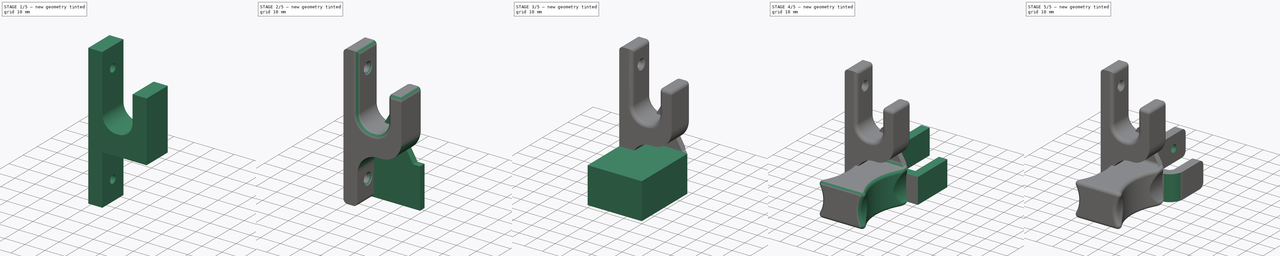
[diagram: build sequence overview — one tinted view per stage of 5, left to right]
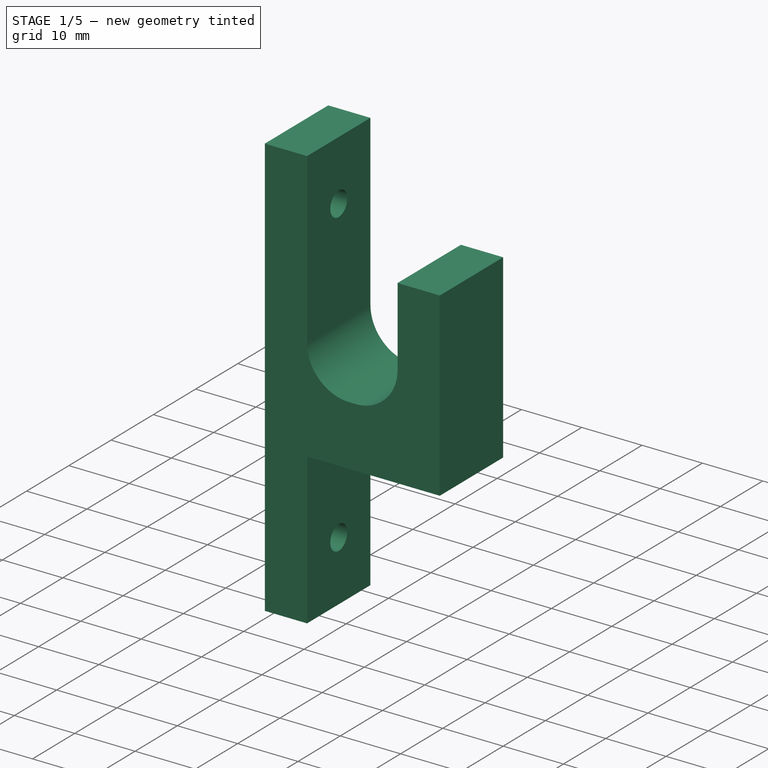
[diagram: stage 1 of 5 — iso view after this stage's code; geometry added in this stage tinted green]
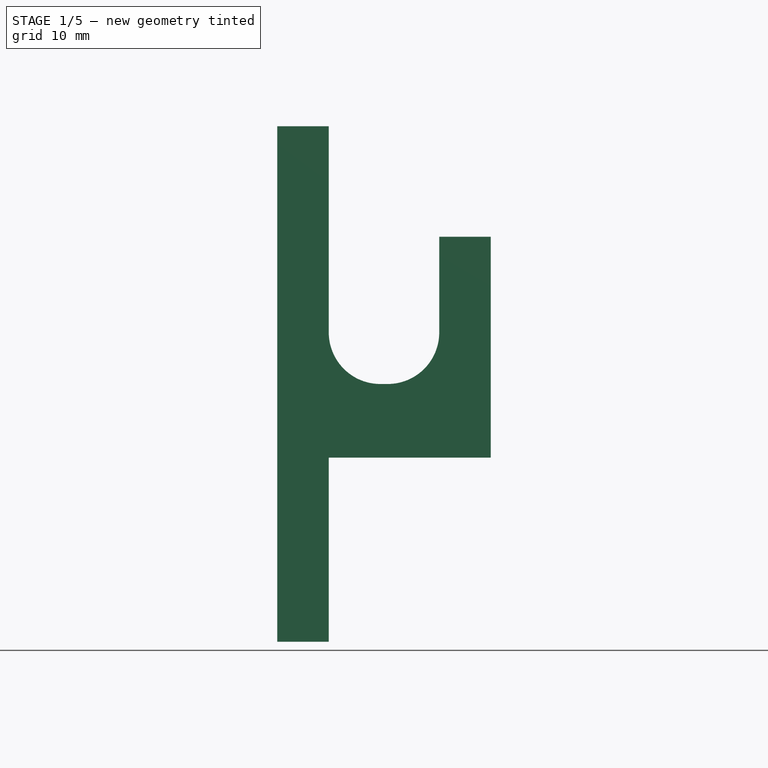
[diagram: stage 1 of 5 — front view after this stage's code; geometry added in this stage tinted green]
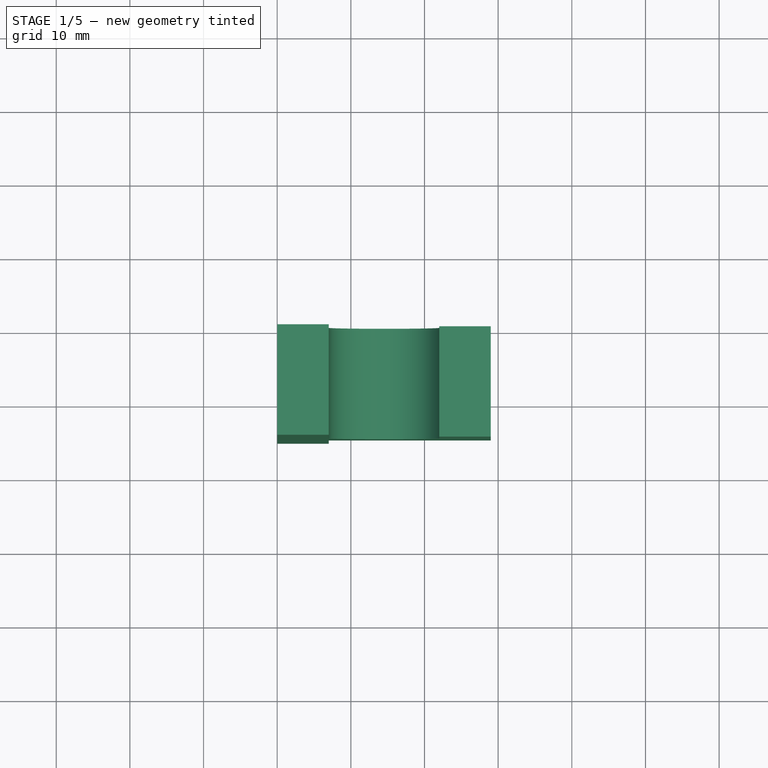
[diagram: stage 1 of 5 — top view after this stage's code; geometry added in this stage tinted green]
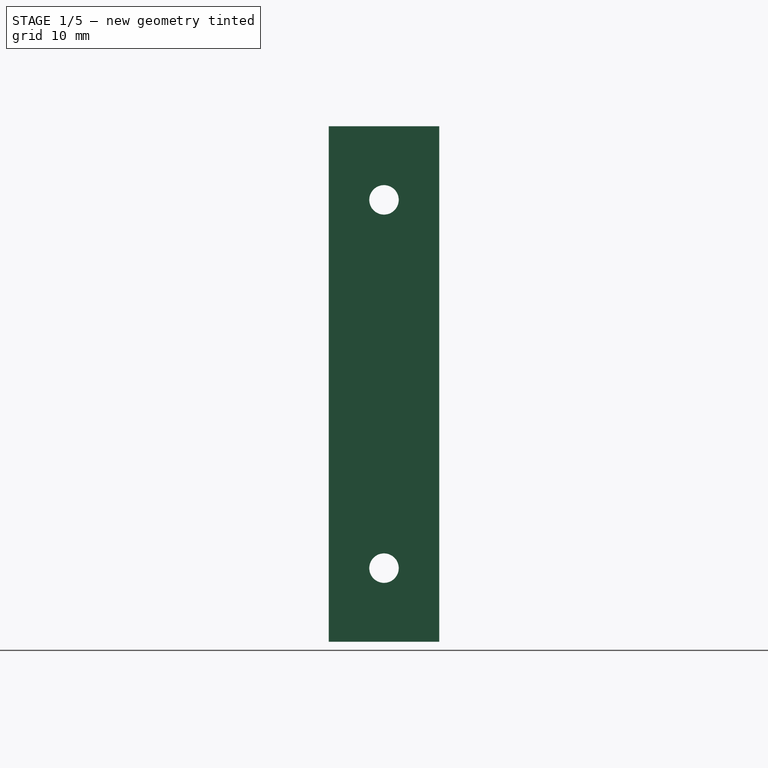
[diagram: stage 1 of 5 — right view after this stage's code; geometry added in this stage tinted green]
FCSTD DOCUMENT  (FreeCAD 1.0R39109 (Git))
Label: washBasketHook
License: All rights reserved
LicenseURL: https://en.wikipedia.org/wiki/All_rights_reserved
objects: Sketcher::SketchObject×6, PartDesign::Fillet×6, PartDesign::Pad×4, PartDesign::Body×3, PartDesign::Pocket×3, PartDesign::SubtractiveCylinder×2, PartDesign::Chamfer×2, Spreadsheet::Sheet×1
note: 66 computed .brp shape members not serialized (recipe doc carries the construction recipe); baked Part::Feature solids carry a one-line shape summary decoded from their .brp

FEATURE [PartDesign::Body] Body001  label="standoff"
  AllowCompound = false
  Group = -> [Sketch001,Pad001,Pad002,Chamfer,Cylinder001,Sketch003,Pocket,Sketch004,Pocket001,Fillet002]
  Origin = -> Origin001
  Tip = -> Fillet002
FEATURE [Sketcher::SketchObject] Sketch005
  ArcFitTolerance = 1e-06
  AttachmentSupport = -> [XZ_Plane002]
  FullyConstrained = true
  MakeInternals = false
  MapMode = 5
  Placement = pos=(0,0,0) rot=(1,0,0;1.5708rad)
  sketch-geometry (10):
    g0: LineSegment StartX=0 StartY=0 StartZ=0 EndX=0 EndY=70 EndZ=0
    g1: LineSegment StartX=0 StartY=70 StartZ=0 EndX=7 EndY=70 EndZ=0
    g2: LineSegment StartX=7 StartY=70 StartZ=0 EndX=7 EndY=35 EndZ=0
    g3: LineSegment StartX=22 StartY=35 StartZ=0 EndX=22 EndY=55 EndZ=0
    g4: LineSegment StartX=22 StartY=55 StartZ=0 EndX=29 EndY=55 EndZ=0
    g5: LineSegment StartX=29 StartY=55 StartZ=0 EndX=29 EndY=25 EndZ=0
    g6: LineSegment StartX=29 StartY=25 StartZ=0 EndX=7 EndY=25 EndZ=0
    g7: LineSegment StartX=7 StartY=25 StartZ=0 EndX=7 EndY=0 EndZ=0
    g8: LineSegment StartX=7 StartY=0 StartZ=0 EndX=0 EndY=0 EndZ=0
    g9: LineSegment StartX=7 StartY=35 StartZ=0 EndX=22 EndY=35 EndZ=0
  constraints (29):
    c: Coincident(g0,g-1)
    c: PointOnObject(g0,g-2)
    c: Coincident(g1,g0)
    c: Horizontal(g1)
    c: Coincident(g2,g1)
    c: Vertical(g2)
    c: Vertical(g3)
    c: Coincident(g4,g3)
    c: Horizontal(g4)
    c: Coincident(g5,g4)
    c: Vertical(g5)
    c: Coincident(g6,g5)
    c: Horizontal(g6)
    c: Coincident(g7,g6)
    c: PointOnObject(g7,g-1)
    c: Vertical(g7)
    c: Coincident(g8,g7)
    c: Coincident(g8,g0)
    c: Coincident(g9,g2)
    c: Coincident(g9,g3)
    c: Horizontal(g9)
    c: DistanceX(g9,g9) = 15
    c: DistanceX(g4,g4) = 7
    c: DistanceX(g1,g1) = 7
    c: DistanceX(g8,g8) = 7
    c: DistanceY(g3,g3) = 20
    c: Distance(g2,g6) = 10
    c: DistanceY(g7,g7) = 25
    c: DistanceY(g2,g2) = 35
FEATURE [PartDesign::Pad] Pad003
  Direction = (0,-1,2e-16)
  Length = 15
  Length2 = 10
  Placement = pos=(0,0,0) rot=(1,0,0;1.5708rad)
  Profile = -> Sketch005
  ReferenceAxis = -> Sketch005 [N_Axis]
  Refine = true
  Suppressed = false
  Type = 0
FEATURE [Sketcher::SketchObject] Sketch006
  ArcFitTolerance = 1e-06
  AttachmentSupport = -> [Pad003]
  ExternalGeometry = -> [Pad003]
  FullyConstrained = true
  MakeInternals = false
  MapMode = 5
  Placement = pos=(0,0,0) rot=(0.707107,0,-0.707107;3.14159rad)
  sketch-geometry (3):
    g0: LineSegment [constr] StartX=-70 StartY=7.5 StartZ=0 EndX=0 EndY=7.5 EndZ=0
    g1: Circle CenterX=-60 CenterY=7.5 CenterZ=0 NormalX=0 NormalY=0 NormalZ=1 AngleXU=0 Radius=2
    g2: Circle CenterX=-10 CenterY=7.5 CenterZ=0 NormalX=0 NormalY=0 NormalZ=1 AngleXU=0 Radius=2
  constraints (9):
    c: Symmetric(g-3,g-3,g0)
    c: PointOnObject(g1,g0)
    c: PointOnObject(g2,g0)
    c: Equal(g1,g2)
    c: Diameter(g2) = 4
    c: DistanceX(g0,g1) = 10
    c: Distance(g2,g-3) = 10
    c: PointOnObject(g0,g-4)
    c: Horizontal(g0)
FEATURE [PartDesign::Pocket] Pocket002
  BaseFeature = -> Pad003
  Direction = (1,0,2e-16)
  Length = 5
  Length2 = 5
  Placement = pos=(0,0,0) rot=(1,0,0;1.5708rad)
  Profile = -> Sketch006
  ReferenceAxis = -> Sketch006 [N_Axis]
  Refine = true
  Suppressed = false
  Type = 1
FEATURE [PartDesign::Fillet] Fillet003
  Base = -> Pocket002 [Edge32,Edge33]
  BaseFeature = -> Pocket002
  Placement = pos=(0,0,0) rot=(1,0,0;1.5708rad)
  Radius = 7
  Refine = true
  SupportTransform = false
  Suppressed = false
  UseAllEdges = false
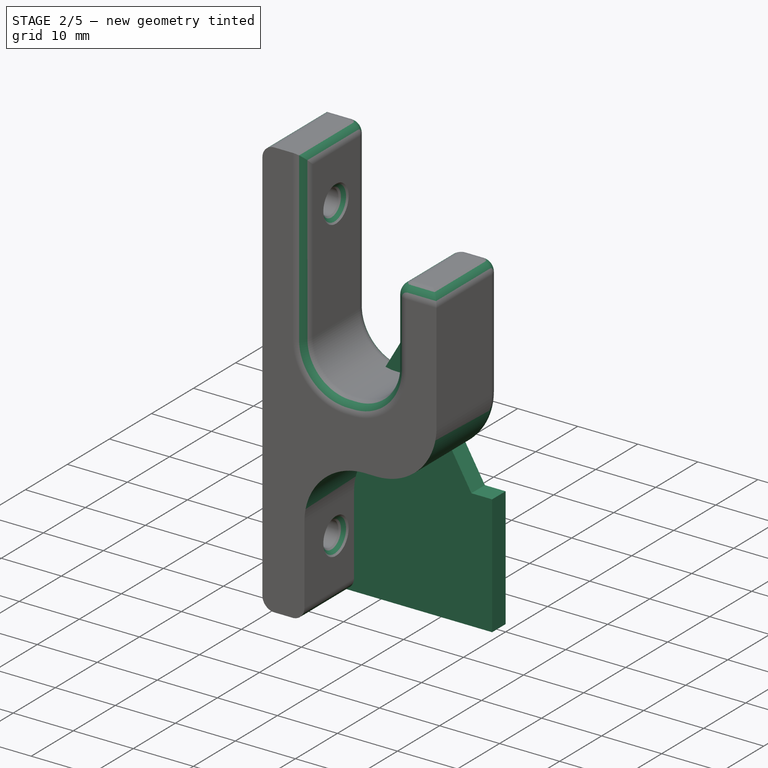
[diagram: stage 2 of 5 — iso view after this stage's code; geometry added in this stage tinted green]
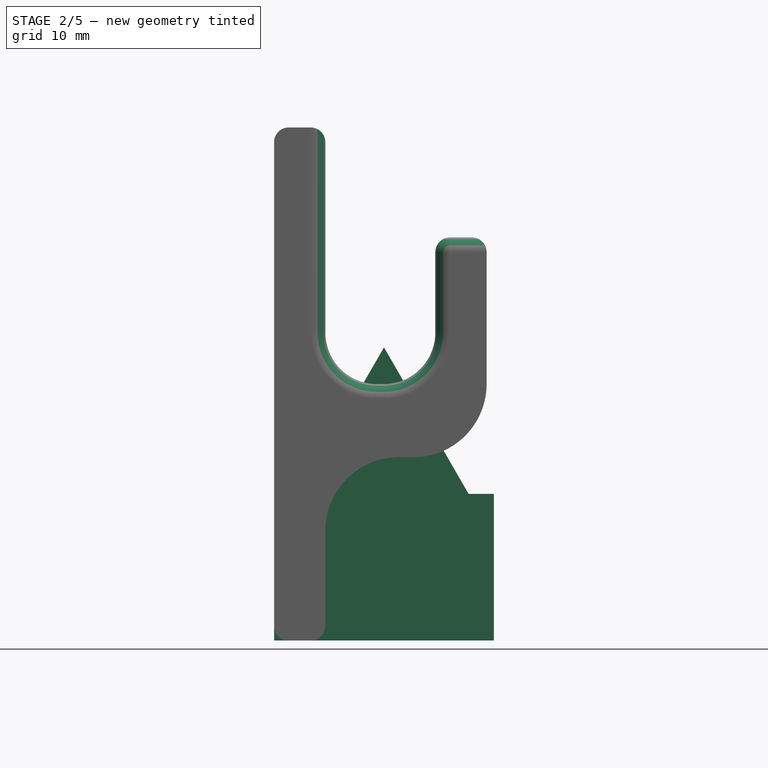
[diagram: stage 2 of 5 — front view after this stage's code; geometry added in this stage tinted green]
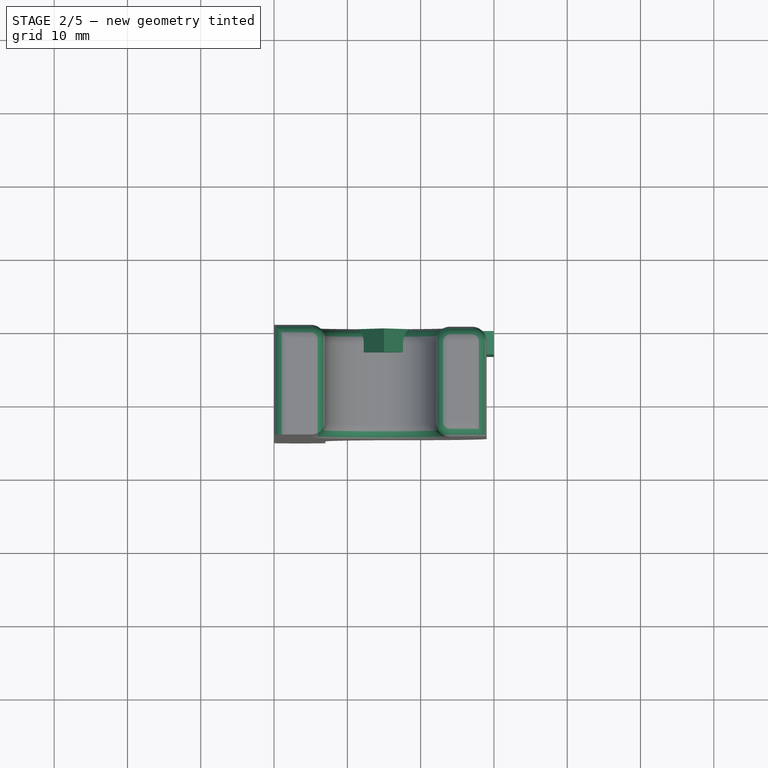
[diagram: stage 2 of 5 — top view after this stage's code; geometry added in this stage tinted green]
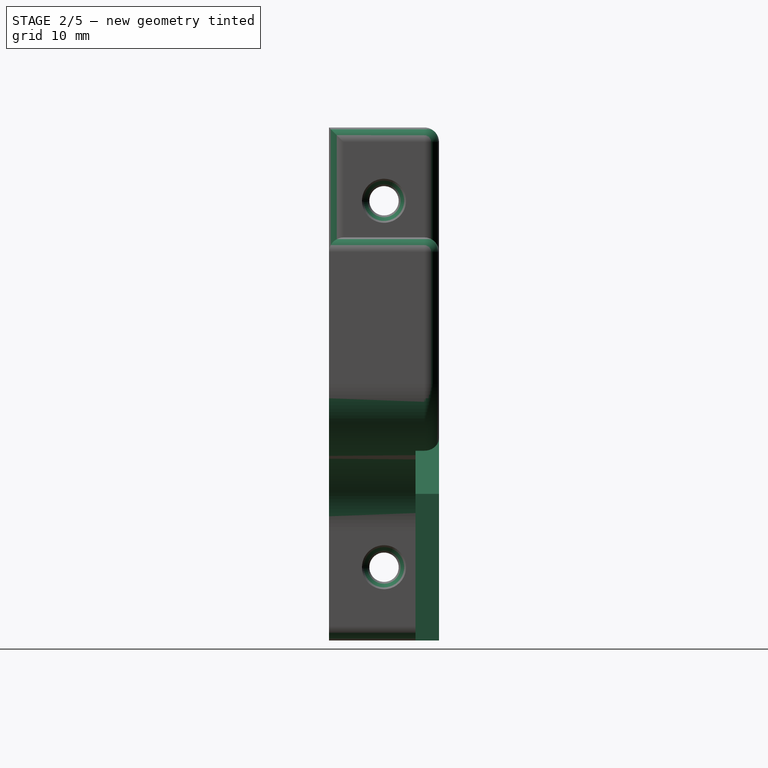
[diagram: stage 2 of 5 — right view after this stage's code; geometry added in this stage tinted green]
FEATURE [PartDesign::Body] Body  label="hook"
  AllowCompound = false
  Group = -> [Sketch,Pad,Fillet,Fillet001,Cylinder]
  Origin = -> Origin
  Tip = -> Cylinder
FEATURE [Sketcher::SketchObject] Sketch001
  ArcFitTolerance = 1e-06
  AttachmentSupport = -> [XZ_Plane001]
  FullyConstrained = true
  MakeInternals = false
  MapMode = 5
  Placement = pos=(0,0,0) rot=(1,0,0;1.5708rad)
  sketch-geometry (10):
    g0: LineSegment StartX=0 StartY=0 StartZ=0 EndX=30 EndY=0 EndZ=0
    g1: LineSegment StartX=30 StartY=0 StartZ=0 EndX=30 EndY=20 EndZ=0
    g2: LineSegment [constr] StartX=30 StartY=20 StartZ=0 EndX=0 EndY=20 EndZ=0
    g3: LineSegment StartX=0 StartY=20 StartZ=0 EndX=0 EndY=0 EndZ=0
    g4: LineSegment [constr] StartX=15 StartY=20 StartZ=0 EndX=15 EndY=61.81 EndZ=0
    g5: LineSegment StartX=3.45301 StartY=20 StartZ=0 EndX=15 EndY=40 EndZ=0
    g6: LineSegment StartX=15 StartY=40 StartZ=0 EndX=26.547 EndY=20 EndZ=0
    g7: LineSegment StartX=0 StartY=20 StartZ=0 EndX=3.45301 EndY=20 EndZ=0
    g8: LineSegment StartX=26.547 StartY=20 StartZ=0 EndX=30 EndY=20 EndZ=0
    g9: LineSegment StartX=3.45301 StartY=20 StartZ=0 EndX=26.547 EndY=20 EndZ=0
  constraints (27):
    c: Coincident(g0,g1)
    c: Coincident(g1,g2)
    c: Coincident(g2,g3)
    c: Coincident(g3,g0)
    c: Horizontal(g0)
    c: Horizontal(g2)
    c: Vertical(g1)
    c: Vertical(g3)
    c: Coincident(g0,g-1)
    c: Symmetric(g2,g2,g4)
    c: Vertical(g4)
    c: Angle(g5,g-1) = 2.09439
    c: PointOnObject(g5,g2)
    c: PointOnObject(g5,g4)
    c: Angle(g-1,g6) = -1.0472
    c: Coincident(g6,g5)
    c: PointOnObject(g6,g2)
    c: DistanceY(g6,g6) = 20
    c: DistanceX(g0,g0) = 30  'width'
    c: DistanceY(g1,g1) = 20
    c: Distance(g4,g4) = 41.81
    c: Coincident(g7,g2)
    c: Coincident(g7,g5)
    c: Coincident(g8,g6)
    c: Coincident(g8,g1)
    c: Coincident(g9,g5)
    c: Coincident(g9,g6)
FEATURE [PartDesign::Pad] Pad001
  Direction = (0,-1,2e-16)
  Length = 3.2
  Length2 = 10
  Placement = pos=(0,0,0) rot=(1,0,0;1.5708rad)
  Profile = -> Sketch001 [Edge7,Edge6,Edge5,Edge4,Edge3,Edge2,Edge1]
  ReferenceAxis = -> Sketch001 [N_Axis]
  Refine = true
  Suppressed = false
  Type = 0
FEATURE [PartDesign::Fillet] Fillet004
  Base = -> Fillet003 [Edge38,Edge33]
  BaseFeature = -> Fillet003
  Placement = pos=(0,0,0) rot=(1,0,0;1.5708rad)
  Radius = 10
  Refine = true
  SupportTransform = false
  Suppressed = false
  UseAllEdges = false
FEATURE [PartDesign::Fillet] Fillet005
  Base = -> Fillet004 [Edge31,Edge9,Edge38,Edge33,Edge7,Edge8,Edge3,Edge10,Edge39,Edge16,Edge43,Edge26,Edge21]
  BaseFeature = -> Fillet004
  Placement = pos=(0,0,0) rot=(1,0,0;1.5708rad)
  Radius = 2
  Refine = true
  SupportTransform = false
  Suppressed = false
  UseAllEdges = false
FEATURE [PartDesign::Chamfer] Chamfer001
  Angle = 45
  Base = -> Fillet005 [Edge70,Edge72]
  BaseFeature = -> Fillet005
  ChamferType = 0
  FlipDirection = false
  Placement = pos=(0,0,0) rot=(1,0,0;1.5708rad)
  Refine = true
  Size = 1
  Size2 = 1
  SupportTransform = false
  Suppressed = false
  UseAllEdges = false
FEATURE [PartDesign::Body] Body002  label="anotherHook"
  AllowCompound = false
  Group = -> [Sketch005,Pad003,Sketch006,Pocket002,Fillet003,Fillet004,Fillet005,Chamfer001]
  Origin = -> Origin002
  Tip = -> Chamfer001
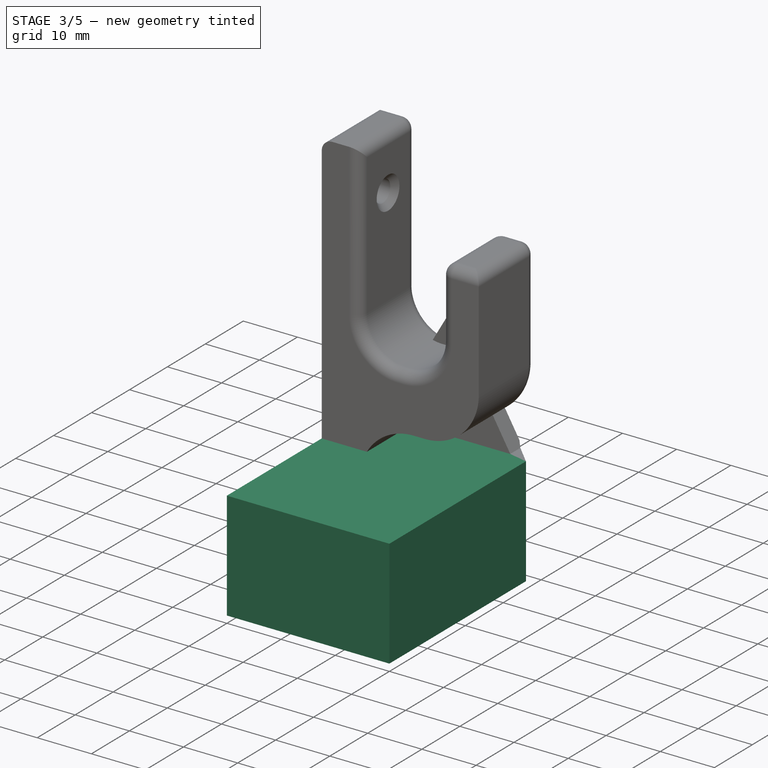
[diagram: stage 3 of 5 — iso view after this stage's code; geometry added in this stage tinted green]
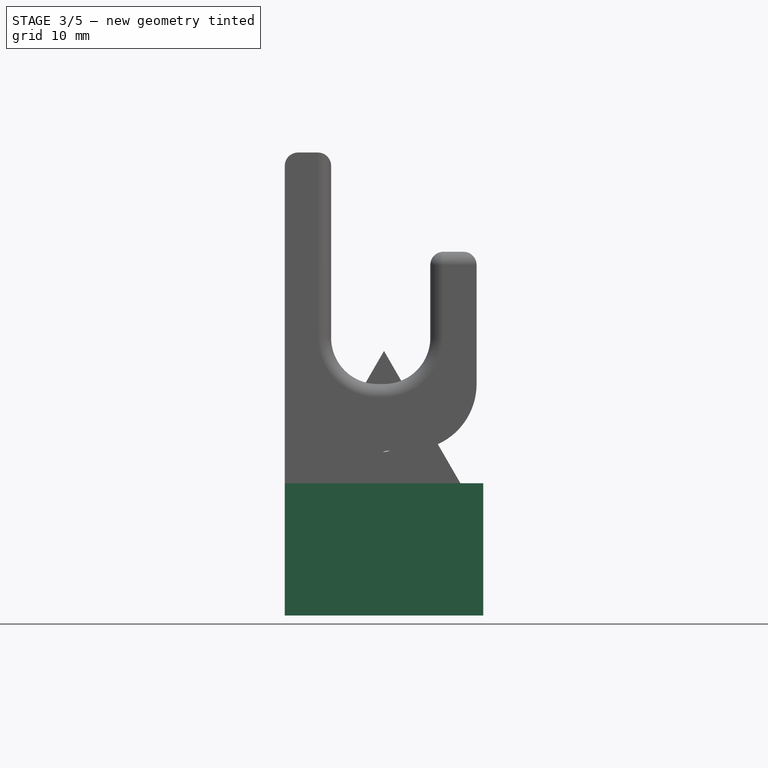
[diagram: stage 3 of 5 — front view after this stage's code; geometry added in this stage tinted green]
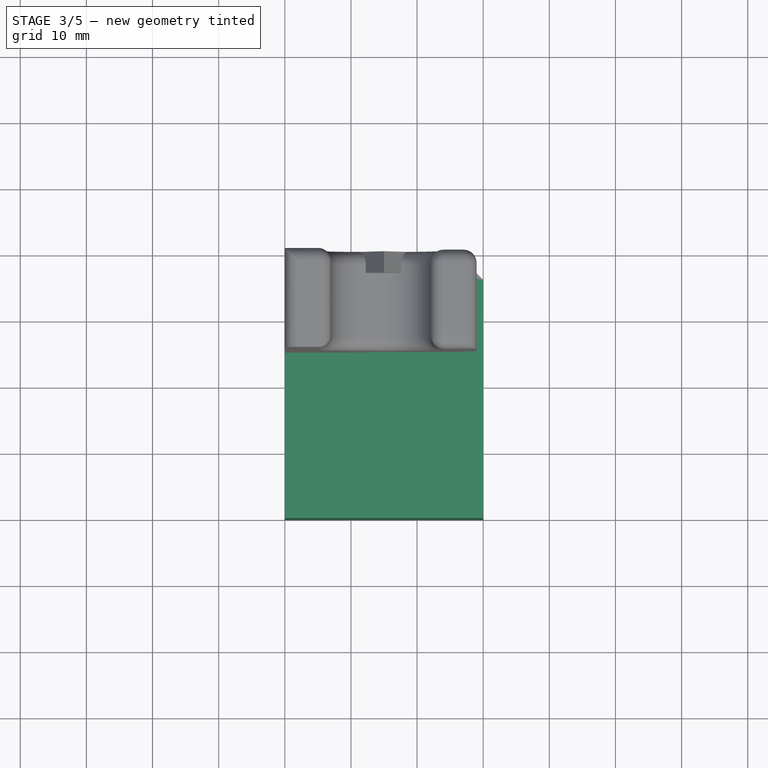
[diagram: stage 3 of 5 — top view after this stage's code; geometry added in this stage tinted green]
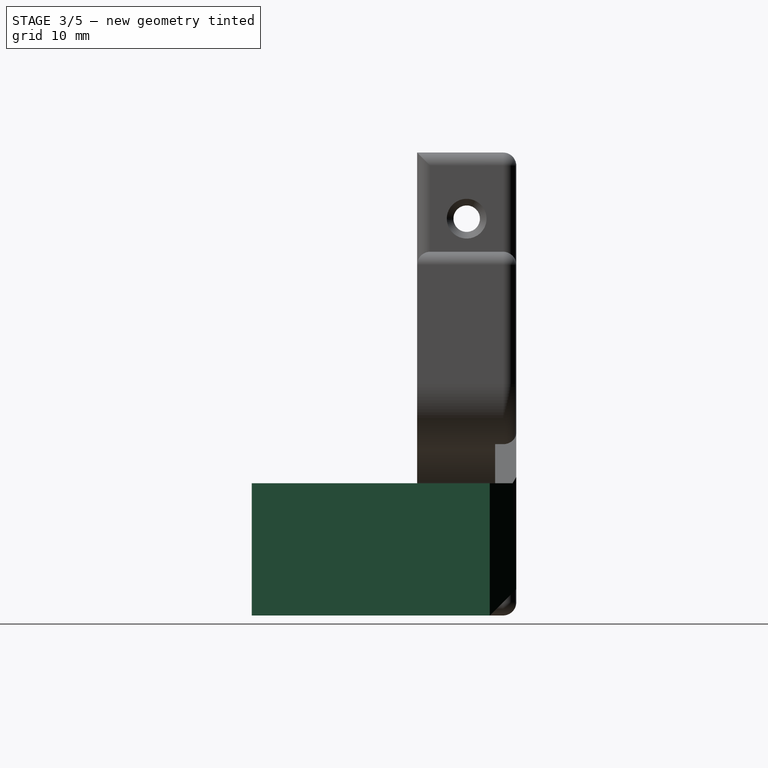
[diagram: stage 3 of 5 — right view after this stage's code; geometry added in this stage tinted green]
FEATURE [PartDesign::Pad] Pad002
  BaseFeature = -> Pad001
  Direction = (0,-1,2e-16)
  Length = 40
  Length2 = 10
  Placement = pos=(0,0,0) rot=(1,0,0;1.5708rad)
  Profile = -> Sketch001 [Edge8,Edge1,Edge2,Edge3,Edge4,Edge5]
  ReferenceAxis = -> Sketch001 [N_Axis]
  Refine = true
  Suppressed = false
  Type = 0
FEATURE [PartDesign::Chamfer] Chamfer
  Angle = 45
  Base = -> Pad002 [Edge19,Edge17,Edge18]
  BaseFeature = -> Pad002
  ChamferType = 0
  FlipDirection = false
  Placement = pos=(0,0,0) rot=(1,0,0;1.5708rad)
  Refine = true
  Size = 4
  Size2 = 1
  SupportTransform = false
  Suppressed = false
  UseAllEdges = false
FEATURE [PartDesign::SubtractiveCylinder] Cylinder001
  Angle = 360
  AttacherType = Attacher::AttachEngine3D
  AttachmentOffset = pos=(-15,-27,0) rot=(0,0,1;0rad)
  AttachmentSupport = -> [Chamfer]
  BaseFeature = -> Chamfer
  FirstAngle = 0
  Height = 10
  MapMode = 5
  Placement = pos=(15,-5.9e-15,27) rot=(0,0.707107,-0.707107;3.14159rad)
  Radius = 2.25
  Refine = true
  SecondAngle = 0
  Suppressed = false
  expr: .AttachmentOffset.Base.x = -Sketch001.Constraints.width / 2
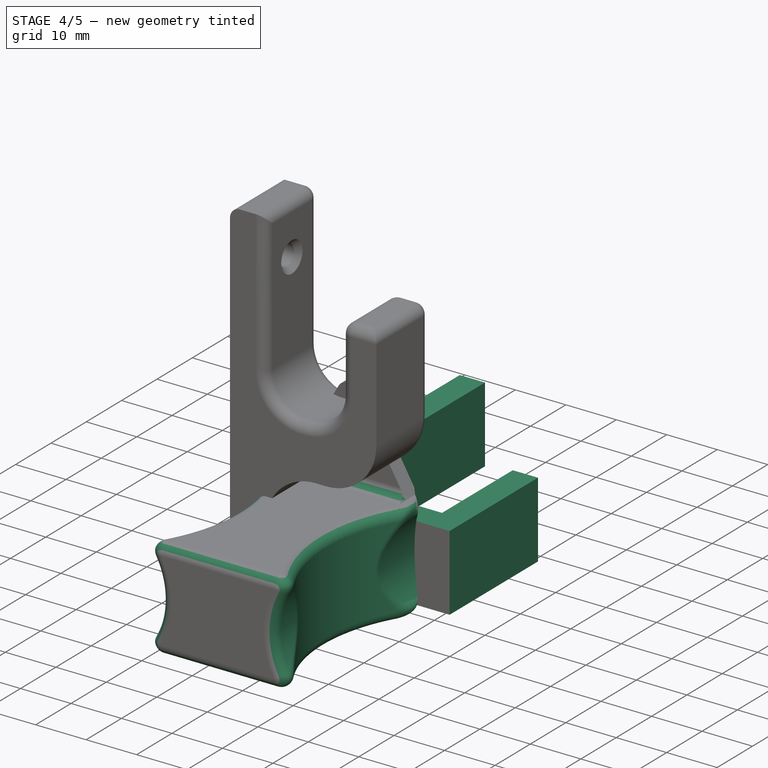
[diagram: stage 4 of 5 — iso view after this stage's code; geometry added in this stage tinted green]
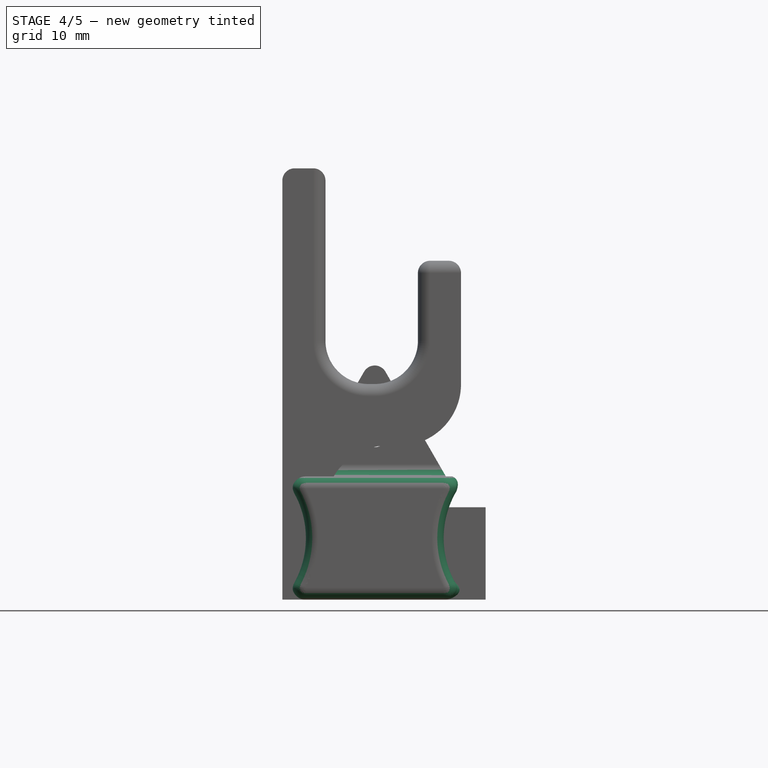
[diagram: stage 4 of 5 — front view after this stage's code; geometry added in this stage tinted green]
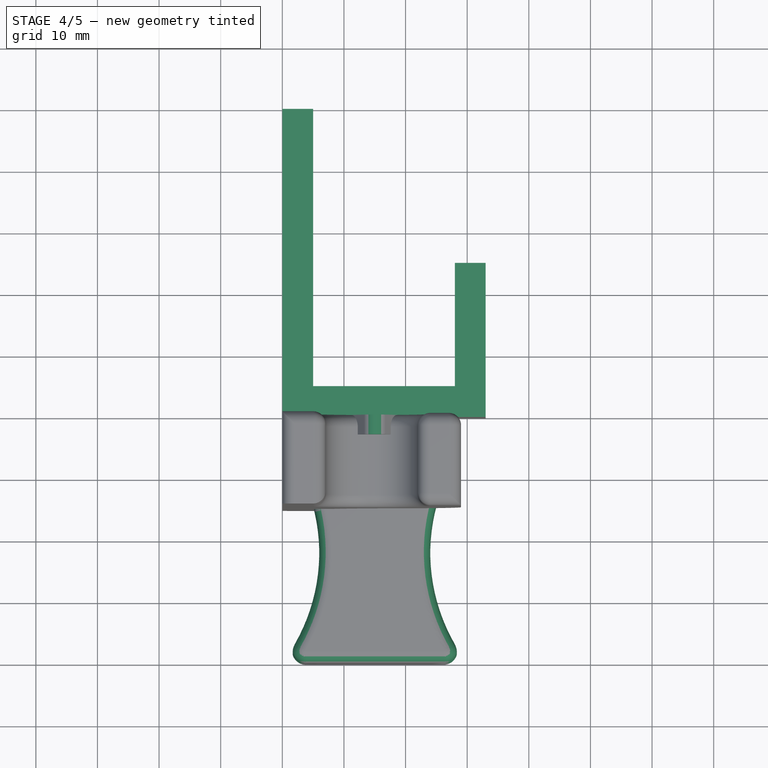
[diagram: stage 4 of 5 — top view after this stage's code; geometry added in this stage tinted green]
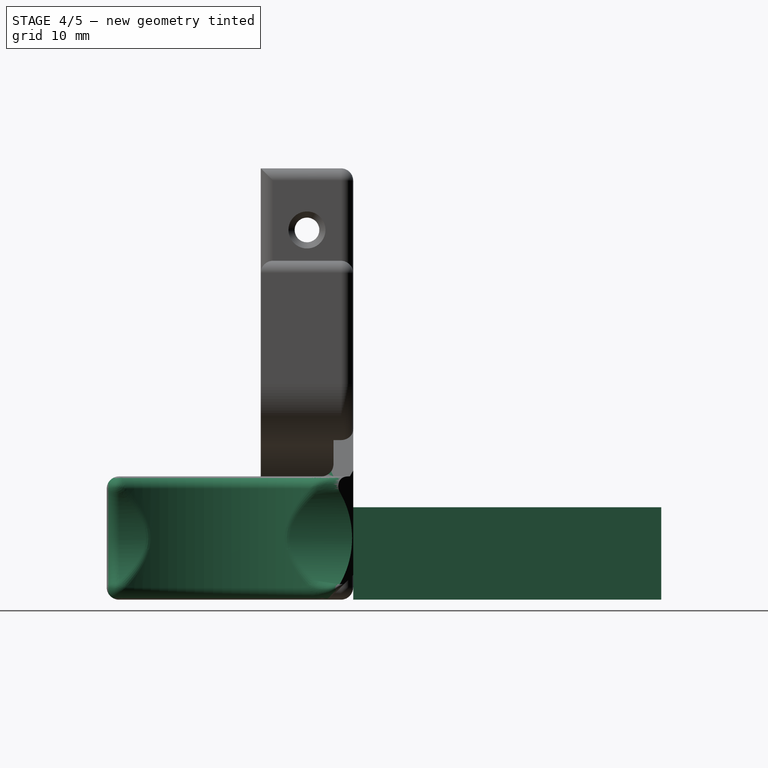
[diagram: stage 4 of 5 — right view after this stage's code; geometry added in this stage tinted green]
FEATURE [Sketcher::SketchObject] Sketch
  ArcFitTolerance = 1e-06
  AttachmentSupport = -> [XY_Plane]
  FullyConstrained = true
  MakeInternals = false
  MapMode = 5
  expr: Constraints[17] = <<mea>>.wall
  expr: Constraints[18] = <<mea>>.wall
  expr: Constraints[19] = <<mea>>.wall
  sketch-geometry (8):
    g0: LineSegment StartX=0 StartY=0 StartZ=0 EndX=33 EndY=0 EndZ=0
    g1: LineSegment StartX=33 StartY=0 StartZ=0 EndX=33 EndY=25 EndZ=0
    g2: LineSegment StartX=33 StartY=25 StartZ=0 EndX=28 EndY=25 EndZ=0
    g3: LineSegment StartX=28 StartY=25 StartZ=0 EndX=28 EndY=5 EndZ=0
    g4: LineSegment StartX=28 StartY=5 StartZ=0 EndX=5 EndY=5 EndZ=0
    g5: LineSegment StartX=5 StartY=5 StartZ=0 EndX=5 EndY=50 EndZ=0
    g6: LineSegment StartX=5 StartY=50 StartZ=0 EndX=0 EndY=50 EndZ=0
    g7: LineSegment StartX=0 StartY=50 StartZ=0 EndX=0 EndY=0 EndZ=0
  constraints (23):
    c: Coincident(g0,g-1)
    c: PointOnObject(g0,g-1)
    c: Coincident(g1,g0)
    c: Vertical(g1)
    c: Coincident(g2,g1)
    c: Horizontal(g2)
    c: Coincident(g3,g2)
    c: Vertical(g3)
    c: Coincident(g4,g3)
    c: Horizontal(g4)
    c: Coincident(g5,g4)
    c: Vertical(g5)
    c: Coincident(g6,g5)
    c: PointOnObject(g6,g-2)
    c: Horizontal(g6)
    c: Coincident(g7,g6)
    c: Coincident(g7,g0)
    c: DistanceX(g2,g2) = 5
    c: Distance(g0,g4) = 5
    c: DistanceX(g6,g6) = 5
    c: DistanceY(g3,g3) = 20
    c: DistanceY(g5,g5) = 45  'height'
    c: Distance(g3,g5) = 23
FEATURE [Spreadsheet::Sheet] Spreadsheet  label="mea"
  cells = A1='wall; B1(wall)==5 mm
FEATURE [PartDesign::Pad] Pad
  Direction = (0,0,1)
  Length = 15
  Length2 = 10
  Profile = -> Sketch
  ReferenceAxis = -> Sketch [N_Axis]
  Refine = true
  Suppressed = false
  Type = 0
FEATURE [Sketcher::SketchObject] Sketch003
  ArcFitTolerance = 1e-06
  AttachmentSupport = -> [Cylinder001]
  ExternalGeometry = -> [Cylinder001]
  FullyConstrained = true
  MakeInternals = false
  MapMode = 5
  Placement = pos=(15,-7.2e-15,20) rot=(0,0,1;3.14159rad)
  sketch-geometry (4):
    g0: ArcOfCircle CenterX=39 CenterY=22 CenterZ=0 NormalX=0 NormalY=0 NormalZ=1 AngleXU=0 Radius=30 StartAngle=2.49809 EndAngle=3.78509
    g1: LineSegment StartX=15 StartY=40 StartZ=0 EndX=15 EndY=4 EndZ=0
    g2: ArcOfCircle CenterX=-39 CenterY=22 CenterZ=0 NormalX=0 NormalY=0 NormalZ=1 AngleXU=0 Radius=30 StartAngle=5.63968 EndAngle=6.92669
    g3: LineSegment StartX=-15 StartY=40 StartZ=0 EndX=-15 EndY=4 EndZ=0
  constraints (10):
    c: Coincident(g0,g-3)
    c: Coincident(g0,g-3)
    c: Coincident(g1,g0)
    c: Coincident(g1,g0)
    c: Radius(g0) = 30
    c: Coincident(g2,g-4)
    c: Coincident(g2,g-4)
    c: Coincident(g3,g2)
    c: Coincident(g3,g2)
    c: Equal(g2,g0)
FEATURE [PartDesign::Pocket] Pocket
  BaseFeature = -> Cylinder001
  Direction = (0,0,-1)
  Length = 5
  Length2 = 5
  Placement = pos=(15,-6e-15,27) rot=(0,0.707107,-0.707107;3.14159rad)
  Profile = -> Sketch003
  ReferenceAxis = -> Sketch003 [N_Axis]
  Refine = true
  Suppressed = false
  Type = 1
FEATURE [Sketcher::SketchObject] Sketch004
  ArcFitTolerance = 1e-06
  AttachmentSupport = -> [Pocket]
  ExternalGeometry = -> [Pocket]
  FullyConstrained = true
  MakeInternals = false
  MapMode = 5
  Placement = pos=(15,-40,27) rot=(0,0.707107,-0.707107;3.14159rad)
  sketch-geometry (4):
    g0: ArcOfCircle CenterX=-26.1803 CenterY=17 CenterZ=0 NormalX=0 NormalY=0 NormalZ=1 AngleXU=0 Radius=15 StartAngle=5.55346 EndAngle=7.01291
    g1: ArcOfCircle CenterX=26.1803 CenterY=17 CenterZ=0 NormalX=0 NormalY=0 NormalZ=1 AngleXU=0 Radius=15 StartAngle=2.41186 EndAngle=3.87132
    g2: LineSegment StartX=-15 StartY=27 StartZ=0 EndX=-15 EndY=7 EndZ=0
    g3: LineSegment StartX=15 StartY=27 StartZ=0 EndX=15 EndY=7 EndZ=0
  constraints (10):
    c: Coincident(g0,g-4)
    c: Coincident(g0,g-4)
    c: Coincident(g1,g-3)
    c: Coincident(g1,g-3)
    c: Equal(g0,g1)
    c: Coincident(g2,g0)
    c: Coincident(g2,g0)
    c: Coincident(g3,g1)
    c: Coincident(g3,g1)
    c: Radius(g1) = 15
FEATURE [PartDesign::Pocket] Pocket001
  BaseFeature = -> Pocket
  Direction = (0,1,2e-16)
  Length = 5
  Length2 = 5
  Placement = pos=(15,-6e-15,27) rot=(0,0.707107,-0.707107;3.14159rad)
  Profile = -> Sketch004
  ReferenceAxis = -> Sketch004 [N_Axis]
  Refine = true
  Suppressed = false
  Type = 1
FEATURE [PartDesign::Fillet] Fillet002
  Base = -> Pocket001 [Edge8,Edge6,Edge32,Edge27,Edge33,Edge28,Edge7,Edge29,Edge30,Edge26,Edge23,Edge31,Edge25,Edge24,Edge15,Edge3]
  BaseFeature = -> Pocket001
  Placement = pos=(15,-6e-15,27) rot=(0,0.707107,-0.707107;3.14159rad)
  Radius = 2
  Refine = true
  SupportTransform = false
  Suppressed = false
  UseAllEdges = false
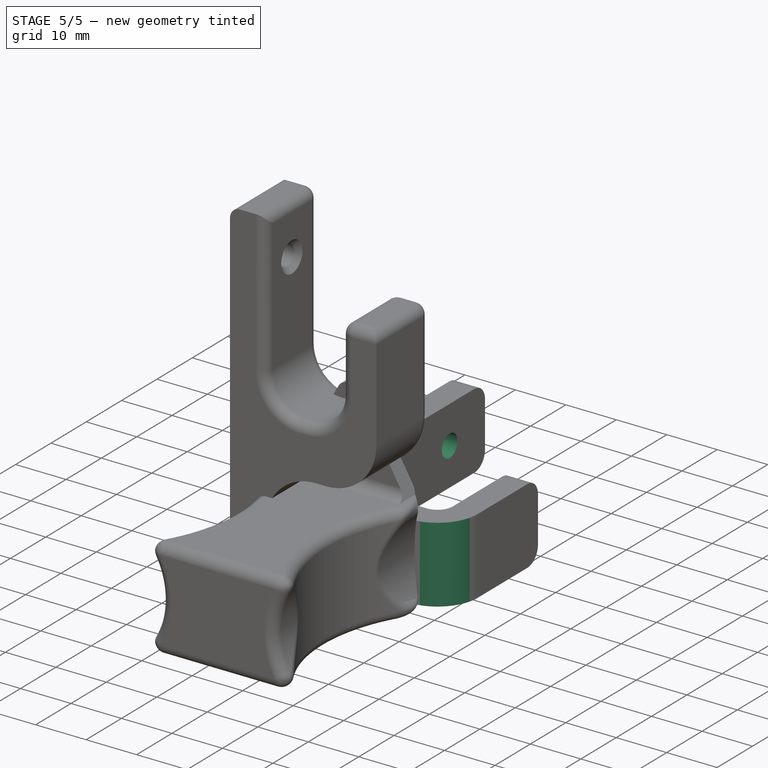
[diagram: stage 5 of 5 — iso view after this stage's code; geometry added in this stage tinted green]
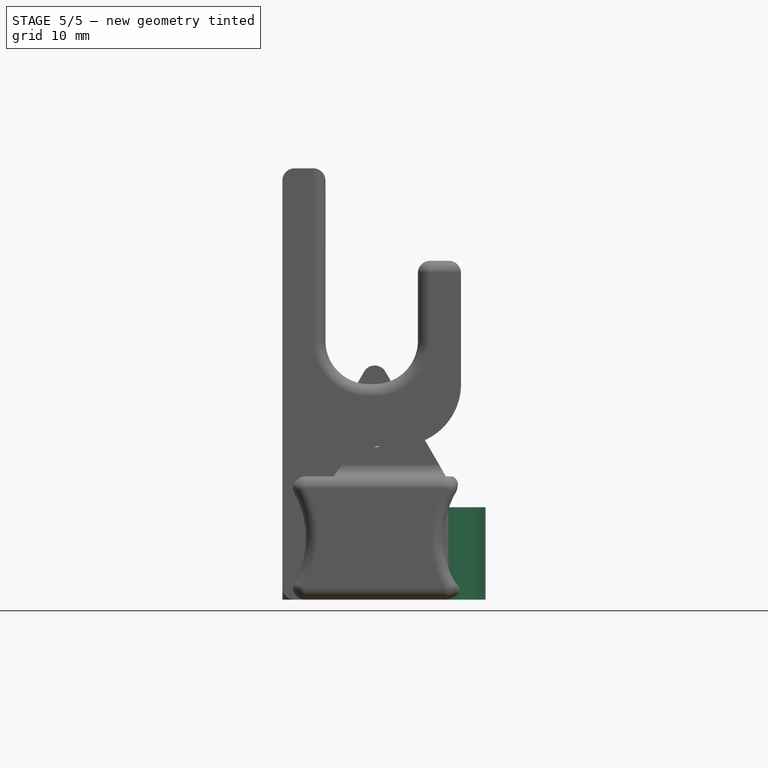
[diagram: stage 5 of 5 — front view after this stage's code; geometry added in this stage tinted green]
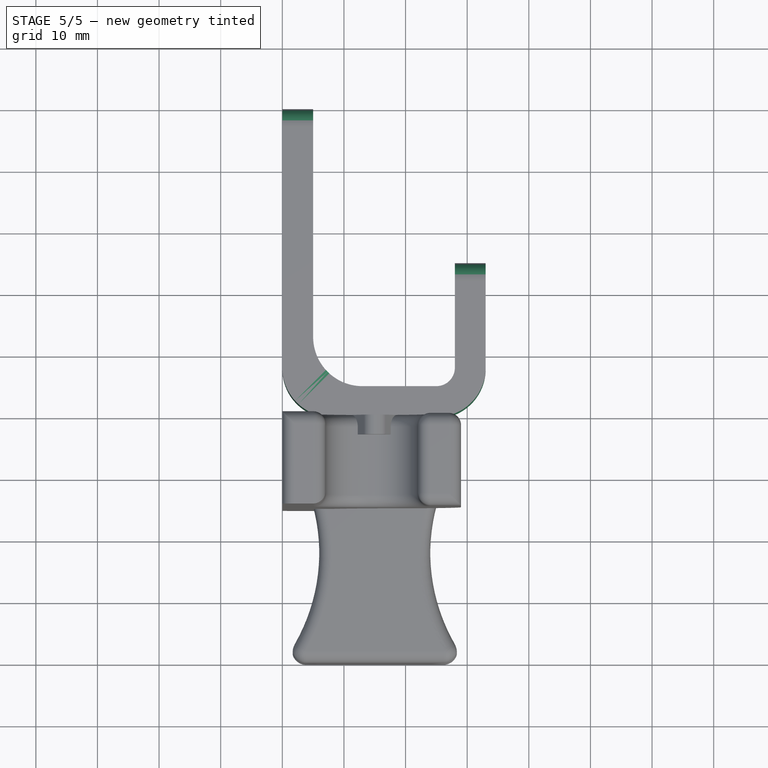
[diagram: stage 5 of 5 — top view after this stage's code; geometry added in this stage tinted green]
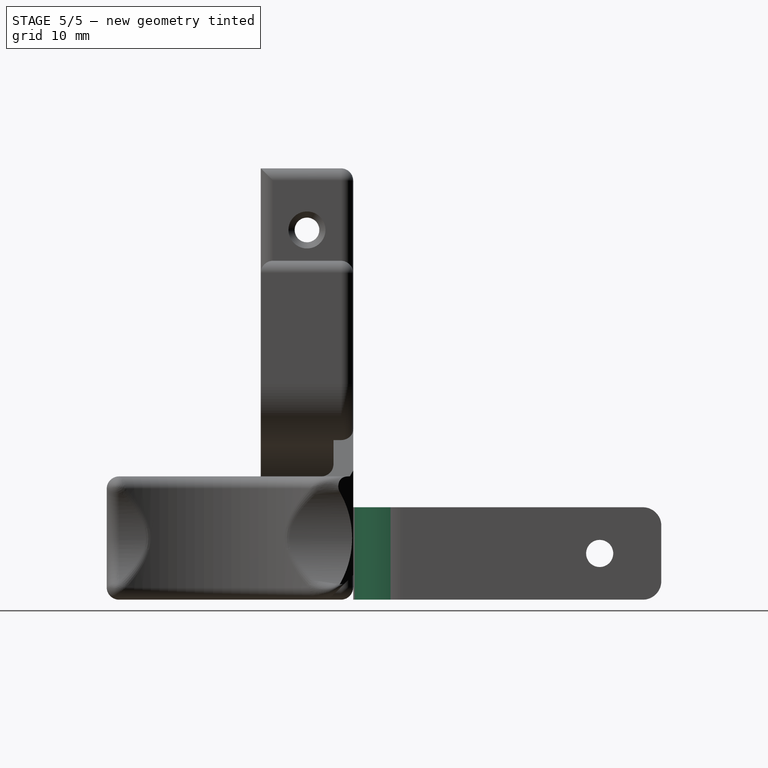
[diagram: stage 5 of 5 — right view after this stage's code; geometry added in this stage tinted green]
FEATURE [PartDesign::Fillet] Fillet
  Base = -> Pad [Edge1,Edge14,Edge2]
  BaseFeature = -> Pad
  Radius = 8
  Refine = true
  SupportTransform = false
  Suppressed = false
  UseAllEdges = false
FEATURE [PartDesign::Fillet] Fillet001
  Base = -> Fillet [Edge21,Edge9,Edge22,Edge10,Edge32]
  BaseFeature = -> Fillet
  Radius = 3
  Refine = true
  SupportTransform = false
  Suppressed = false
  UseAllEdges = false
FEATURE [PartDesign::SubtractiveCylinder] Cylinder
  Angle = 360
  AttacherType = Attacher::AttachEngine3D
  AttachmentOffset = pos=(40,7.5,0) rot=(0,0,1;0rad)
  AttachmentSupport = -> [Fillet001]
  BaseFeature = -> Fillet001
  FirstAngle = 0
  Height = 10
  MapMode = 5
  Placement = pos=(0,40,7.5) rot=(0.57735,0.57735,0.57735;2.0944rad)
  Radius = 2.2
  Refine = true
  SecondAngle = 0
  Suppressed = false
  expr: .AttachmentOffset.Base.x = Sketch.Constraints.height - 5 mm
  expr: .AttachmentOffset.Base.y = <<Pad>>.Length / 2
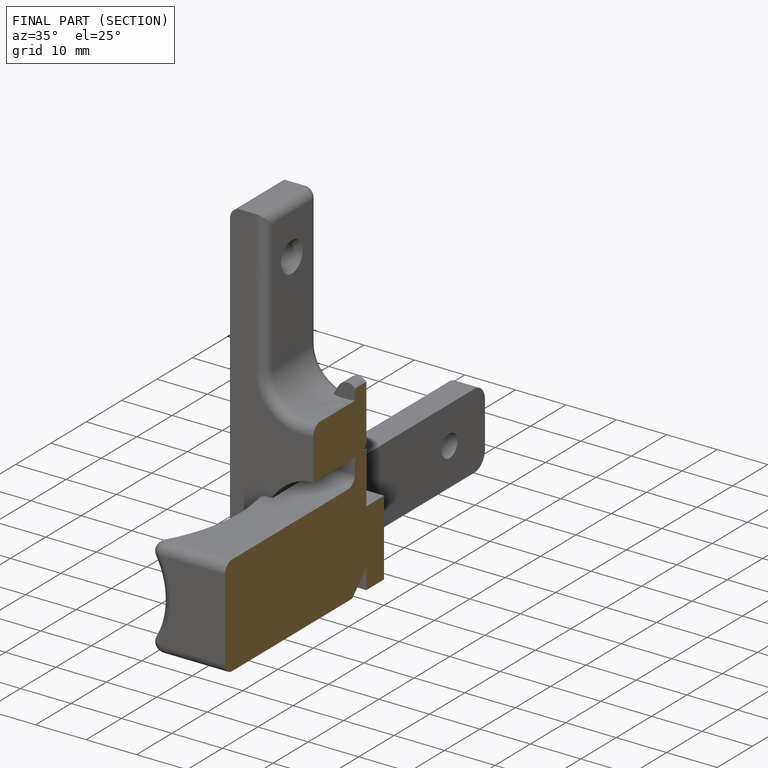
[diagram: finished part — half-section view (interior)]
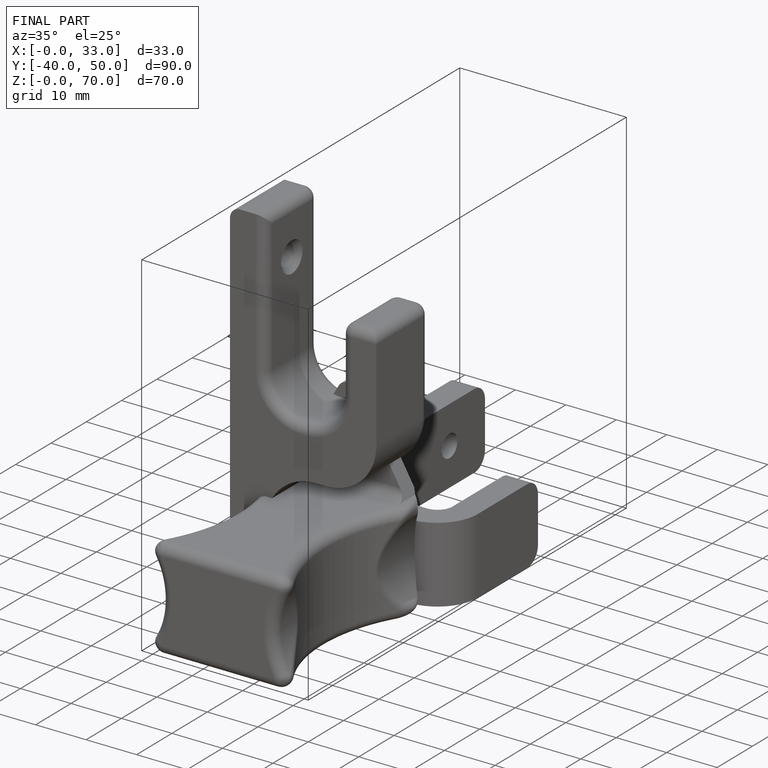
[diagram: finished part — iso view with bounding-box wireframe]
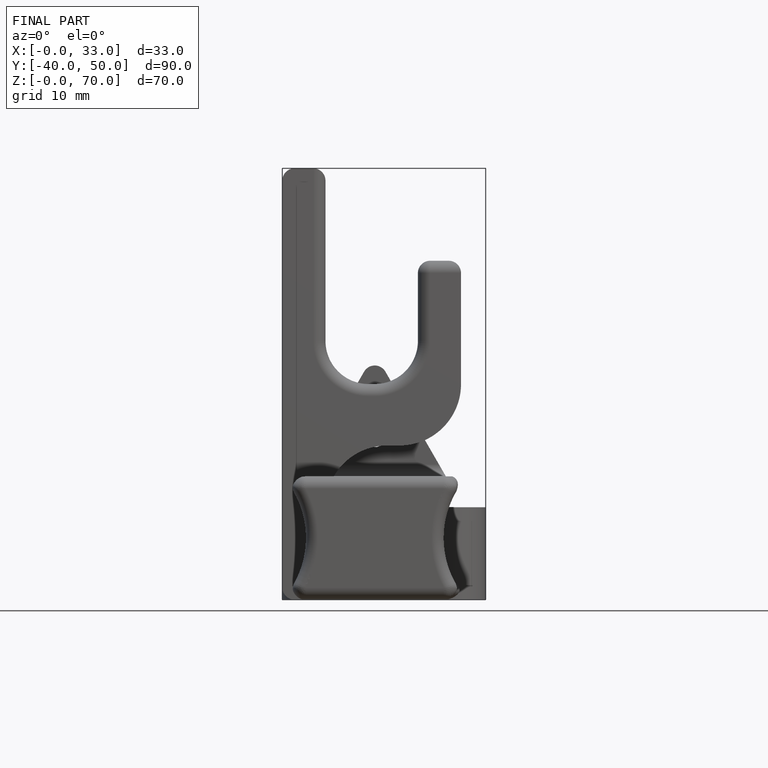
[diagram: finished part — front view with bounding-box wireframe]
